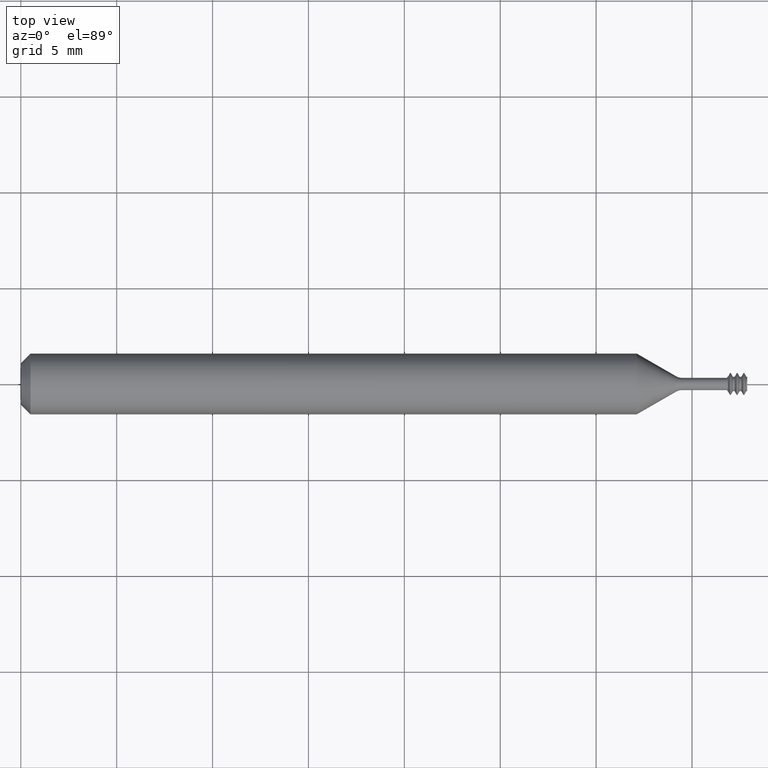
[diagram: clean part render]
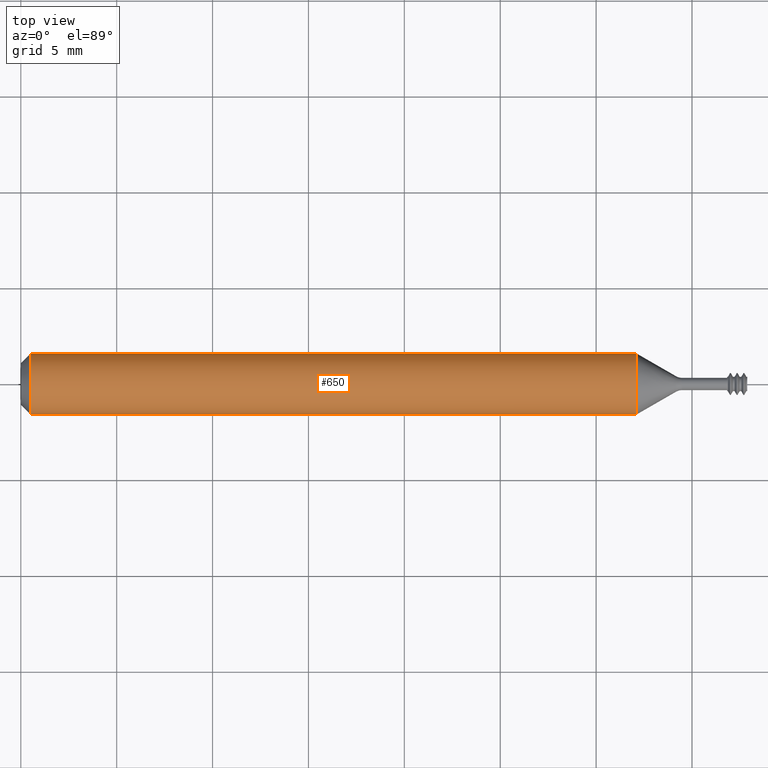
[diagram: same view with one face highlighted and labeled with its STEP entity id]
A machine part, top view. The second image highlights one B-rep face of the part: STEP entity #650.
In plain terms, the highlighted cylindrical surface (edge-blend (fillet) strip) has radius 1.5837 mm, axis along (-1, -0, -0).
Its self-contained STEP definition (entity closure, byte-faithful):
#47 = EDGE_CURVE ( 'NONE', #351, #561, #938, .T. ) ;
#48 = AXIS2_PLACEMENT_3D ( 'NONE', #928, #402, #1027 ) ;
#54 = CARTESIAN_POINT ( 'NONE',  ( 1.264657267242691896, -0.06235000000000025938, 0.0000000000000000000 ) ) ;
#63 = EDGE_LOOP ( 'NONE', ( #227, #64, #802, #587 ) ) ;
#64 = ORIENTED_EDGE ( 'NONE', *, *, #47, .T. ) ;
#165 = CARTESIAN_POINT ( 'NONE',  ( 1.449999999999999734, -1.224646799147353207E-16, 0.0000000000000000000 ) ) ;
#227 = ORIENTED_EDGE ( 'NONE', *, *, #908, .T. ) ;
#260 = EDGE_CURVE ( 'NONE', #1065, #1139, #748, .T. ) ;
#282 = VECTOR ( 'NONE', #857, 39.37007874015748143 ) ;
#287 = AXIS2_PLACEMENT_3D ( 'NONE', #165, #969, #1140 ) ;
#319 = AXIS2_PLACEMENT_3D ( 'NONE', #467, #1088, #556 ) ;
#351 = VERTEX_POINT ( 'NONE', #730 ) ;
#378 = CARTESIAN_POINT ( 'NONE',  ( 1.449999999999999734, 0.06235000000000004428, 7.635672792683766701E-18 ) ) ;
#400 = DIRECTION ( 'NONE',  ( -1.000000000000000000, -5.007945890630771977E-17, -0.0000000000000000000 ) ) ;
#402 = DIRECTION ( 'NONE',  ( -1.000000000000000000, -5.007945890630771977E-17, -0.0000000000000000000 ) ) ;
#429 = CARTESIAN_POINT ( 'NONE',  ( 0.02000000000000006287, -0.06235000000000039816, 7.635672792683771323E-18 ) ) ;
#431 = EDGE_CURVE ( 'NONE', #1139, #561, #669, .T. ) ;
#467 = CARTESIAN_POINT ( 'NONE',  ( 0.02000000000000005940, -1.940783061507553565E-16, 0.0000000000000000000 ) ) ;
#484 = FACE_OUTER_BOUND ( 'NONE', #63, .T. ) ;
#511 = VECTOR ( 'NONE', #400, 39.37007874015748143 ) ;
#556 = DIRECTION ( 'NONE',  ( 6.846050505373533372E-17, -1.000000000000000000, 0.0000000000000000000 ) ) ;
#561 = VERTEX_POINT ( 'NONE', #701 ) ;
#568 = CARTESIAN_POINT ( 'NONE',  ( 1.449999999999999734, -0.06235000000000028714, 0.0000000000000000000 ) ) ;
#587 = ORIENTED_EDGE ( 'NONE', *, *, #260, .F. ) ;
#650 = ADVANCED_FACE ( 'NONE', ( #484 ), #1147, .T. ) ;
#669 = CIRCLE ( 'NONE', #319, 0.06235000000000018999 ) ;
#701 = CARTESIAN_POINT ( 'NONE',  ( 0.02000000000000005593, 0.06235000000000000264, 0.0000000000000000000 ) ) ;
#706 = CIRCLE ( 'NONE', #48, 0.06235000000000012754 ) ;
#730 = CARTESIAN_POINT ( 'NONE',  ( 1.264657267242691896, 0.06235000000000000264, 7.635672792683768242E-18 ) ) ;
#748 = LINE ( 'NONE', #568, #511 ) ;
#802 = ORIENTED_EDGE ( 'NONE', *, *, #431, .F. ) ;
#857 = DIRECTION ( 'NONE',  ( -1.000000000000000000, -5.007945890630771977E-17, -0.0000000000000000000 ) ) ;
#908 = EDGE_CURVE ( 'NONE', #1065, #351, #706, .T. ) ;
#928 = CARTESIAN_POINT ( 'NONE',  ( 1.264657267242691896, -1.317465436834376939E-16, 0.0000000000000000000 ) ) ;
#938 = LINE ( 'NONE', #378, #282 ) ;
#969 = DIRECTION ( 'NONE',  ( -1.000000000000000000, -5.007945890630771977E-17, -0.0000000000000000000 ) ) ;
#1027 = DIRECTION ( 'NONE',  ( 0.0000000000000000000, -1.000000000000000000, 0.0000000000000000000 ) ) ;
#1065 = VERTEX_POINT ( 'NONE', #54 ) ;
#1088 = DIRECTION ( 'NONE',  ( -1.000000000000000000, -5.007945890630771977E-17, -0.0000000000000000000 ) ) ;
#1139 = VERTEX_POINT ( 'NONE', #429 ) ;
#1140 = DIRECTION ( 'NONE',  ( 0.0000000000000000000, -1.000000000000000000, 0.0000000000000000000 ) ) ;
#1147 = CYLINDRICAL_SURFACE ( 'NONE', #287, 0.06235000000000016224 ) ;